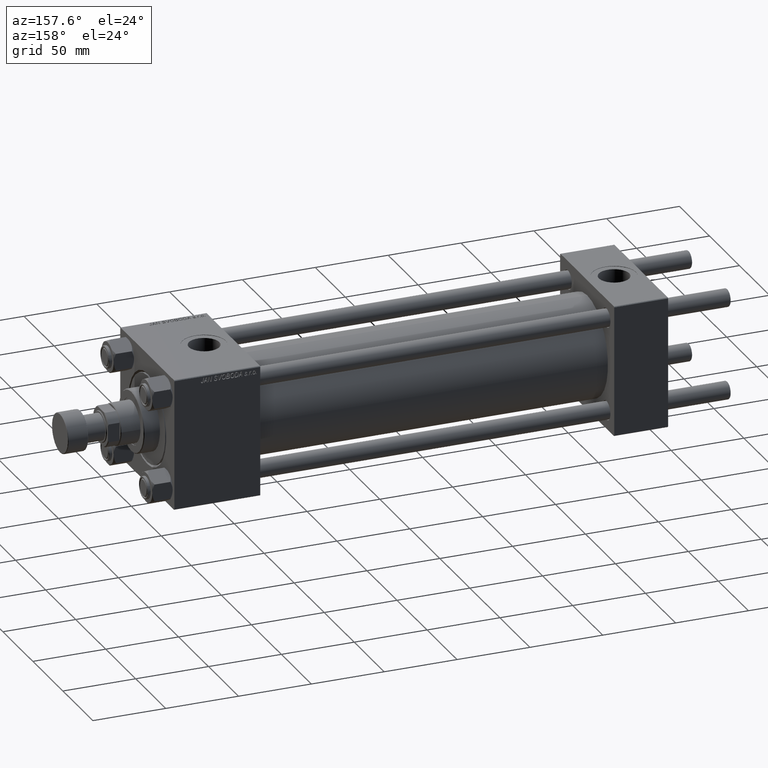
[diagram: clean part render]
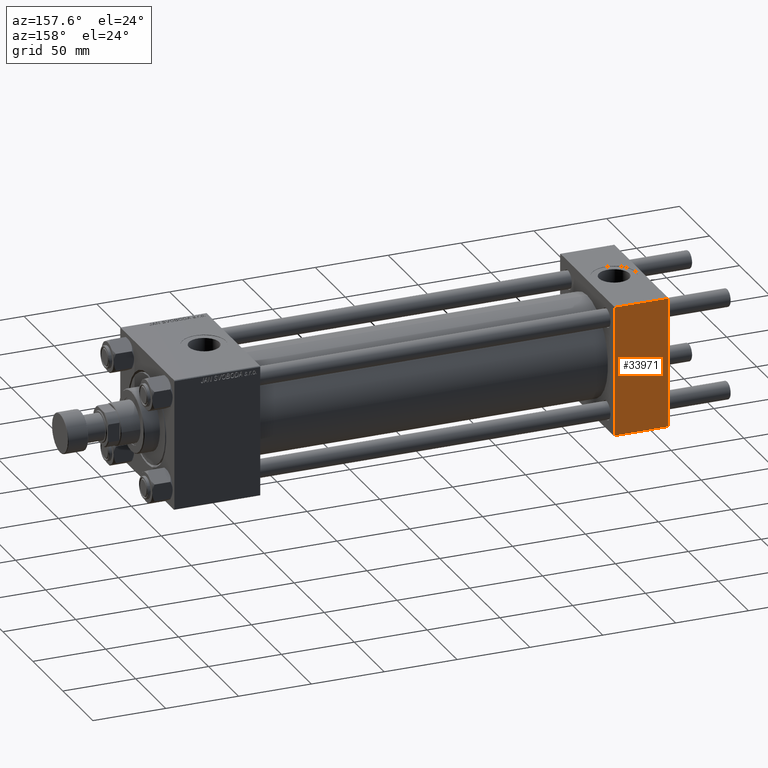
[diagram: same view with one face highlighted and labeled with its STEP entity id]
A machine part, auxiliary view. The second image highlights one B-rep face of the part: STEP entity #33971.
In plain terms, the highlighted planar face has unit normal (0, 1, 0).
Its self-contained STEP definition (entity closure, byte-faithful):
#43 = CARTESIAN_POINT ( 'NONE',  ( 37.00000000000000000, 44.99999999999998579, -44.49999999999995737 ) ) ;
#4165 = VECTOR ( 'NONE', #30028, 1000.000000000000000 ) ;
#5524 = VERTEX_POINT ( 'NONE', #16649 ) ;
#6472 = VERTEX_POINT ( 'NONE', #43 ) ;
#10741 = VERTEX_POINT ( 'NONE', #37486 ) ;
#10864 = EDGE_CURVE ( 'NONE', #5524, #12466, #48795, .T. ) ;
#11094 = DIRECTION ( 'NONE',  ( 0.000000000000000000, -0.000000000000000000, 1.000000000000000000 ) ) ;
#12466 = VERTEX_POINT ( 'NONE', #49475 ) ;
#13311 = CARTESIAN_POINT ( 'NONE',  ( 37.00000000000000000, 44.99999999999998579, 45.00000000000001421 ) ) ;
#14651 = EDGE_LOOP ( 'NONE', ( #16283, #39236, #52000, #41843 ) ) ;
#16283 = ORIENTED_EDGE ( 'NONE', *, *, #21676, .T. ) ;
#16649 = CARTESIAN_POINT ( 'NONE',  ( 0.000000000000000000, 44.99999999999998579, 44.50000000000001421 ) ) ;
#17063 = DIRECTION ( 'NONE',  ( 1.000000000000000000, 0.000000000000000000, 0.000000000000000000 ) ) ;
#17161 = EDGE_CURVE ( 'NONE', #6472, #10741, #32985, .T. ) ;
#19195 = LINE ( 'NONE', #35303, #4165 ) ;
#21676 = EDGE_CURVE ( 'NONE', #12466, #6472, #19195, .T. ) ;
#21927 = EDGE_CURVE ( 'NONE', #5524, #10741, #33411, .T. ) ;
#24264 = CARTESIAN_POINT ( 'NONE',  ( 37.00000000000000000, 44.99999999999998579, -44.49999999999998579 ) ) ;
#25224 = CARTESIAN_POINT ( 'NONE',  ( 37.00000000000000000, 44.99999999999998579, 44.50000000000001421 ) ) ;
#29269 = DIRECTION ( 'NONE',  ( -1.000000000000000000, 0.000000000000000000, 0.000000000000000000 ) ) ;
#30028 = DIRECTION ( 'NONE',  ( 0.000000000000000000, 0.000000000000000000, -1.000000000000000000 ) ) ;
#32985 = LINE ( 'NONE', #24264, #37772 ) ;
#33411 = LINE ( 'NONE', #40839, #41318 ) ;
#33971 = ADVANCED_FACE ( 'NONE', ( #46095 ), #49539, .T. ) ;
#35303 = CARTESIAN_POINT ( 'NONE',  ( 37.00000000000000000, 44.99999999999998579, 45.00000000000001421 ) ) ;
#36167 = AXIS2_PLACEMENT_3D ( 'NONE', #13311, #47324, #11094 ) ;
#37486 = CARTESIAN_POINT ( 'NONE',  ( 0.000000000000000000, 44.99999999999998579, -44.49999999999995737 ) ) ;
#37772 = VECTOR ( 'NONE', #29269, 1000.000000000000000 ) ;
#39236 = ORIENTED_EDGE ( 'NONE', *, *, #17161, .T. ) ;
#40839 = CARTESIAN_POINT ( 'NONE',  ( 0.000000000000000000, 44.99999999999998579, 45.00000000000001421 ) ) ;
#41318 = VECTOR ( 'NONE', #41361, 1000.000000000000000 ) ;
#41361 = DIRECTION ( 'NONE',  ( 0.000000000000000000, 0.000000000000000000, -1.000000000000000000 ) ) ;
#41843 = ORIENTED_EDGE ( 'NONE', *, *, #10864, .T. ) ;
#46095 = FACE_OUTER_BOUND ( 'NONE', #14651, .T. ) ;
#46951 = VECTOR ( 'NONE', #17063, 1000.000000000000000 ) ;
#47324 = DIRECTION ( 'NONE',  ( -0.000000000000000000, 1.000000000000000000, 0.000000000000000000 ) ) ;
#48795 = LINE ( 'NONE', #25224, #46951 ) ;
#49475 = CARTESIAN_POINT ( 'NONE',  ( 37.00000000000000000, 44.99999999999998579, 44.50000000000001421 ) ) ;
#49539 = PLANE ( 'NONE',  #36167 ) ;
#52000 = ORIENTED_EDGE ( 'NONE', *, *, #21927, .F. ) ;